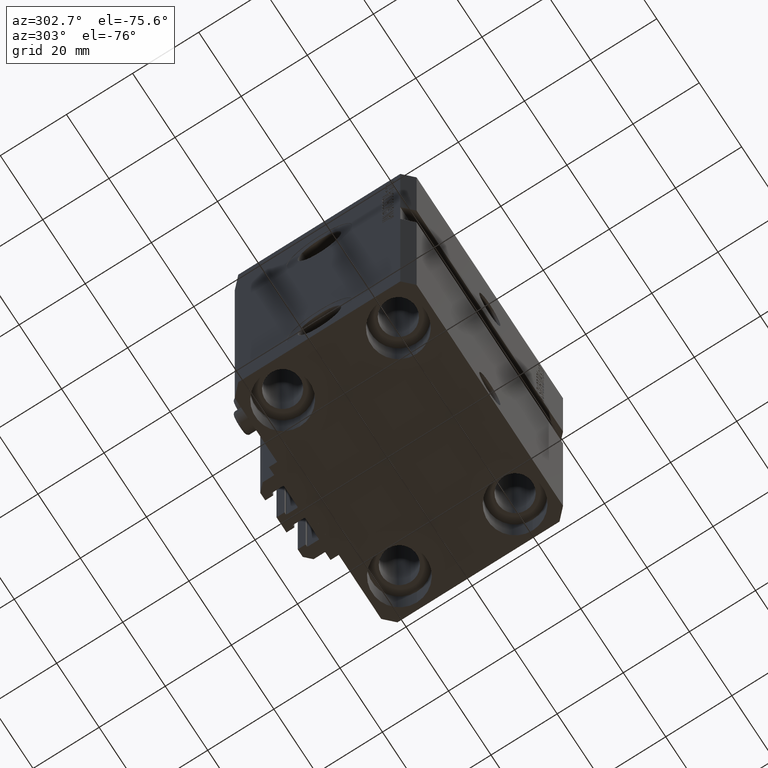
[diagram: clean part render]
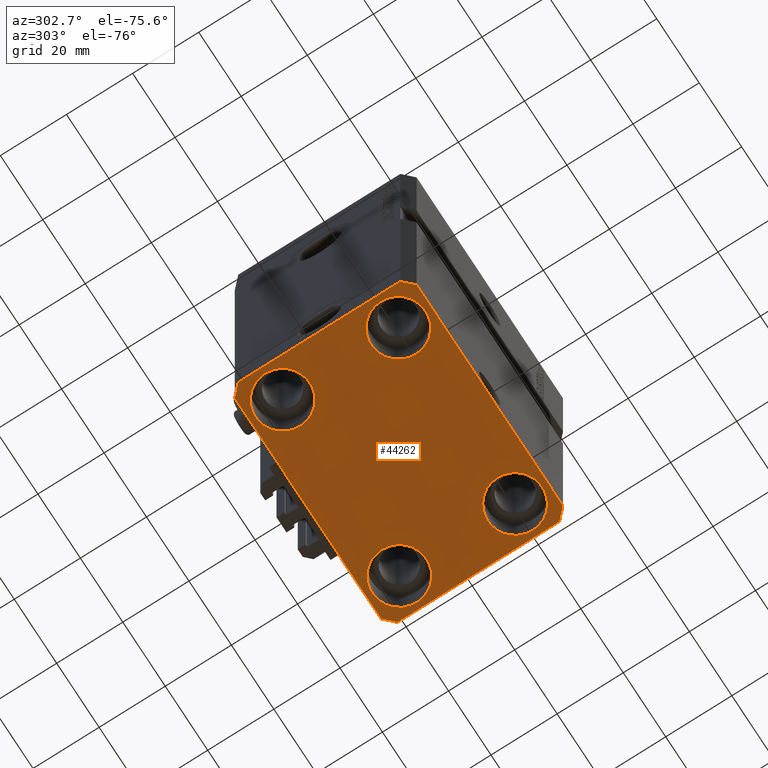
[diagram: same view with one face highlighted and labeled with its STEP entity id]
A machine part, auxiliary view. The second image highlights one B-rep face of the part: STEP entity #44262.
In plain terms, the highlighted planar face has unit normal (0, 0, 1).
Its self-contained STEP definition (entity closure, byte-faithful):
#97 = VERTEX_POINT ( 'NONE', #26257 ) ;
#560 = EDGE_CURVE ( 'NONE', #45654, #14595, #10324, .T. ) ;
#847 = AXIS2_PLACEMENT_3D ( 'NONE', #31319, #25338, #32042 ) ;
#895 = CARTESIAN_POINT ( 'NONE',  ( 19.25000000000000000, 17.50000000000001066, -110.0000000000000000 ) ) ;
#1561 = PLANE ( 'NONE',  #15464 ) ;
#1662 = ORIENTED_EDGE ( 'NONE', *, *, #43629, .F. ) ;
#1934 = DIRECTION ( 'NONE',  ( 1.000000000000000000, 0.000000000000000000, 0.000000000000000000 ) ) ;
#2300 = CARTESIAN_POINT ( 'NONE',  ( -34.49999999999998579, -27.49999999999999645, -110.0000000000000000 ) ) ;
#2833 = CIRCLE ( 'NONE', #33663, 8.249999999999992895 ) ;
#2908 = EDGE_CURVE ( 'NONE', #32606, #7104, #16750, .T. ) ;
#3363 = VECTOR ( 'NONE', #10191, 1000.000000000000114 ) ;
#3722 = EDGE_LOOP ( 'NONE', ( #15270, #9281 ) ) ;
#3876 = CIRCLE ( 'NONE', #31533, 8.250000000000000000 ) ;
#3890 = CARTESIAN_POINT ( 'NONE',  ( 35.74999999999999289, 17.50000000000001066, -110.0000000000000000 ) ) ;
#4223 = DIRECTION ( 'NONE',  ( 0.000000000000000000, -1.000000000000000000, 0.000000000000000000 ) ) ;
#4416 = ORIENTED_EDGE ( 'NONE', *, *, #38544, .T. ) ;
#4461 = EDGE_CURVE ( 'NONE', #37362, #44240, #40879, .T. ) ;
#4703 = CARTESIAN_POINT ( 'NONE',  ( -19.25000000000000355, 17.50000000000000000, -110.0000000000000000 ) ) ;
#4978 = CARTESIAN_POINT ( 'NONE',  ( 37.50000000000051870, 24.49999999999995381, -110.0000000000000000 ) ) ;
#5450 = CIRCLE ( 'NONE', #11806, 8.250000000000000000 ) ;
#5560 = EDGE_LOOP ( 'NONE', ( #44260, #4416 ) ) ;
#5571 = EDGE_CURVE ( 'NONE', #47182, #39895, #15851, .T. ) ;
#5743 = ORIENTED_EDGE ( 'NONE', *, *, #38446, .T. ) ;
#6146 = DIRECTION ( 'NONE',  ( 1.000000000000000000, 0.000000000000000000, 0.000000000000000000 ) ) ;
#6404 = DIRECTION ( 'NONE',  ( 1.076236605503979380E-14, 1.000000000000000000, 0.000000000000000000 ) ) ;
#6805 = AXIS2_PLACEMENT_3D ( 'NONE', #38846, #39092, #16813 ) ;
#7104 = VERTEX_POINT ( 'NONE', #42065 ) ;
#7486 = VERTEX_POINT ( 'NONE', #895 ) ;
#7753 = DIRECTION ( 'NONE',  ( 1.000000000000000000, 0.000000000000000000, 0.000000000000000000 ) ) ;
#8046 = DIRECTION ( 'NONE',  ( -1.000000000000000000, 0.000000000000000000, 0.000000000000000000 ) ) ;
#8465 = DIRECTION ( 'NONE',  ( -0.000000000000000000, -0.000000000000000000, 1.000000000000000000 ) ) ;
#8726 = EDGE_CURVE ( 'NONE', #25590, #29877, #30569, .T. ) ;
#8745 = ORIENTED_EDGE ( 'NONE', *, *, #14236, .F. ) ;
#8804 = ORIENTED_EDGE ( 'NONE', *, *, #4461, .F. ) ;
#9024 = VERTEX_POINT ( 'NONE', #23315 ) ;
#9281 = ORIENTED_EDGE ( 'NONE', *, *, #13380, .T. ) ;
#9432 = LINE ( 'NONE', #4978, #42303 ) ;
#9976 = FACE_OUTER_BOUND ( 'NONE', #10120, .T. ) ;
#10120 = EDGE_LOOP ( 'NONE', ( #29624, #8745, #1662, #8804, #10763, #19708, #47864, #42961 ) ) ;
#10191 = DIRECTION ( 'NONE',  ( 0.7071067811865474617, 0.7071067811865474617, 0.000000000000000000 ) ) ;
#10324 = CIRCLE ( 'NONE', #847, 8.250000000000000000 ) ;
#10430 = AXIS2_PLACEMENT_3D ( 'NONE', #48491, #37613, #15087 ) ;
#10590 = CARTESIAN_POINT ( 'NONE',  ( 27.50000000000000355, -17.50000000000000000, -110.0000000000000000 ) ) ;
#10595 = CARTESIAN_POINT ( 'NONE',  ( 34.49999999999999289, -27.49999999999999645, -110.0000000000000000 ) ) ;
#10763 = ORIENTED_EDGE ( 'NONE', *, *, #20162, .F. ) ;
#11806 = AXIS2_PLACEMENT_3D ( 'NONE', #10590, #37066, #6146 ) ;
#12178 = DIRECTION ( 'NONE',  ( 1.000000000000000000, 0.000000000000000000, 0.000000000000000000 ) ) ;
#12949 = DIRECTION ( 'NONE',  ( 1.000000000000000000, 0.000000000000000000, -0.000000000000000000 ) ) ;
#13380 = EDGE_CURVE ( 'NONE', #36499, #7486, #39100, .T. ) ;
#13385 = CARTESIAN_POINT ( 'NONE',  ( -37.49999999999999289, 24.50000000000000000, -110.0000000000000000 ) ) ;
#14236 = EDGE_CURVE ( 'NONE', #97, #25590, #9432, .T. ) ;
#14595 = VERTEX_POINT ( 'NONE', #23673 ) ;
#15087 = DIRECTION ( 'NONE',  ( 1.000000000000000000, 0.000000000000000000, 0.000000000000000000 ) ) ;
#15270 = ORIENTED_EDGE ( 'NONE', *, *, #48158, .T. ) ;
#15464 = AXIS2_PLACEMENT_3D ( 'NONE', #46853, #43625, #12949 ) ;
#15851 = LINE ( 'NONE', #30951, #27101 ) ;
#16750 = CIRCLE ( 'NONE', #10430, 8.250000000000000000 ) ;
#16813 = DIRECTION ( 'NONE',  ( 1.000000000000000000, 0.000000000000000000, 0.000000000000000000 ) ) ;
#17150 = FACE_BOUND ( 'NONE', #30712, .T. ) ;
#17195 = EDGE_CURVE ( 'NONE', #29877, #47182, #44851, .T. ) ;
#17483 = ORIENTED_EDGE ( 'NONE', *, *, #28271, .T. ) ;
#17644 = DIRECTION ( 'NONE',  ( 1.000000000000000000, 0.000000000000000000, 0.000000000000000000 ) ) ;
#18260 = ORIENTED_EDGE ( 'NONE', *, *, #2908, .T. ) ;
#19309 = LINE ( 'NONE', #33696, #39156 ) ;
#19708 = ORIENTED_EDGE ( 'NONE', *, *, #43483, .F. ) ;
#20070 = DIRECTION ( 'NONE',  ( -0.7071067811865356934, 0.7071067811865594521, 0.000000000000000000 ) ) ;
#20162 = EDGE_CURVE ( 'NONE', #33146, #37362, #36210, .T. ) ;
#20370 = FACE_BOUND ( 'NONE', #5560, .T. ) ;
#21733 = LINE ( 'NONE', #39824, #37616 ) ;
#21816 = CIRCLE ( 'NONE', #6805, 8.250000000000000000 ) ;
#22146 = DIRECTION ( 'NONE',  ( 1.000000000000000000, 0.000000000000000000, 0.000000000000000000 ) ) ;
#22540 = CARTESIAN_POINT ( 'NONE',  ( -34.49999999999999289, 27.50000000000000000, -110.0000000000000000 ) ) ;
#23315 = CARTESIAN_POINT ( 'NONE',  ( -35.75000000000000711, -17.50000000000000000, -110.0000000000000000 ) ) ;
#23673 = CARTESIAN_POINT ( 'NONE',  ( 35.75000000000000711, -17.50000000000000000, -110.0000000000000000 ) ) ;
#25338 = DIRECTION ( 'NONE',  ( -0.000000000000000000, -0.000000000000000000, 1.000000000000000000 ) ) ;
#25381 = CARTESIAN_POINT ( 'NONE',  ( -34.49999999999999289, 27.50000000000000000, -110.0000000000000000 ) ) ;
#25590 = VERTEX_POINT ( 'NONE', #26820 ) ;
#25864 = CARTESIAN_POINT ( 'NONE',  ( -27.50000000000000355, -17.50000000000000000, -110.0000000000000000 ) ) ;
#26018 = CARTESIAN_POINT ( 'NONE',  ( -34.49999999999998579, -27.49999999999999645, -110.0000000000000000 ) ) ;
#26257 = CARTESIAN_POINT ( 'NONE',  ( 37.50000000000051870, 24.49999999999995381, -110.0000000000000000 ) ) ;
#26820 = CARTESIAN_POINT ( 'NONE',  ( 34.50000000000056843, 27.50000000000000000, -110.0000000000000000 ) ) ;
#27101 = VECTOR ( 'NONE', #4223, 1000.000000000000000 ) ;
#28271 = EDGE_CURVE ( 'NONE', #9024, #29353, #29748, .T. ) ;
#28292 = FACE_BOUND ( 'NONE', #3722, .T. ) ;
#28529 = FACE_BOUND ( 'NONE', #40531, .T. ) ;
#29353 = VERTEX_POINT ( 'NONE', #47852 ) ;
#29624 = ORIENTED_EDGE ( 'NONE', *, *, #8726, .F. ) ;
#29748 = CIRCLE ( 'NONE', #44775, 8.250000000000000000 ) ;
#29877 = VERTEX_POINT ( 'NONE', #25381 ) ;
#30289 = VECTOR ( 'NONE', #8046, 1000.000000000000000 ) ;
#30569 = LINE ( 'NONE', #41960, #30289 ) ;
#30712 = EDGE_LOOP ( 'NONE', ( #5743, #18260 ) ) ;
#30951 = CARTESIAN_POINT ( 'NONE',  ( -37.49999999999999289, 24.50000000000000000, -110.0000000000000000 ) ) ;
#31076 = EDGE_CURVE ( 'NONE', #29353, #9024, #21816, .T. ) ;
#31319 = CARTESIAN_POINT ( 'NONE',  ( 27.50000000000000355, -17.50000000000000000, -110.0000000000000000 ) ) ;
#31533 = AXIS2_PLACEMENT_3D ( 'NONE', #39068, #38823, #1934 ) ;
#32042 = DIRECTION ( 'NONE',  ( 1.000000000000000000, 0.000000000000000000, 0.000000000000000000 ) ) ;
#32606 = VERTEX_POINT ( 'NONE', #4703 ) ;
#33146 = VERTEX_POINT ( 'NONE', #26018 ) ;
#33444 = DIRECTION ( 'NONE',  ( 0.7071067811865483499, -0.7071067811865466846, 0.000000000000000000 ) ) ;
#33663 = AXIS2_PLACEMENT_3D ( 'NONE', #37194, #48567, #7753 ) ;
#33696 = CARTESIAN_POINT ( 'NONE',  ( -37.49999999999999289, -24.50000000000000000, -110.0000000000000000 ) ) ;
#33939 = CARTESIAN_POINT ( 'NONE',  ( 34.49999999999999289, -27.49999999999999645, -110.0000000000000000 ) ) ;
#36196 = VECTOR ( 'NONE', #37160, 1000.000000000000000 ) ;
#36210 = LINE ( 'NONE', #2300, #46037 ) ;
#36499 = VERTEX_POINT ( 'NONE', #3890 ) ;
#37066 = DIRECTION ( 'NONE',  ( -0.000000000000000000, -0.000000000000000000, 1.000000000000000000 ) ) ;
#37160 = DIRECTION ( 'NONE',  ( -0.7071067811865471286, -0.7071067811865479058, 0.000000000000000000 ) ) ;
#37194 = CARTESIAN_POINT ( 'NONE',  ( 27.49999999999999645, 17.50000000000001066, -110.0000000000000000 ) ) ;
#37362 = VERTEX_POINT ( 'NONE', #10595 ) ;
#37613 = DIRECTION ( 'NONE',  ( -0.000000000000000000, -0.000000000000000000, 1.000000000000000000 ) ) ;
#37616 = VECTOR ( 'NONE', #6404, 1000.000000000000000 ) ;
#38446 = EDGE_CURVE ( 'NONE', #7104, #32606, #3876, .T. ) ;
#38544 = EDGE_CURVE ( 'NONE', #14595, #45654, #5450, .T. ) ;
#38823 = DIRECTION ( 'NONE',  ( -0.000000000000000000, -0.000000000000000000, 1.000000000000000000 ) ) ;
#38846 = CARTESIAN_POINT ( 'NONE',  ( -27.50000000000000355, -17.50000000000000000, -110.0000000000000000 ) ) ;
#39068 = CARTESIAN_POINT ( 'NONE',  ( -27.50000000000000355, 17.50000000000000000, -110.0000000000000000 ) ) ;
#39092 = DIRECTION ( 'NONE',  ( -0.000000000000000000, -0.000000000000000000, 1.000000000000000000 ) ) ;
#39100 = CIRCLE ( 'NONE', #42270, 8.249999999999992895 ) ;
#39156 = VECTOR ( 'NONE', #33444, 1000.000000000000000 ) ;
#39187 = CARTESIAN_POINT ( 'NONE',  ( 37.49999999999999289, -24.50000000000000000, -110.0000000000000000 ) ) ;
#39824 = CARTESIAN_POINT ( 'NONE',  ( 37.49999999999999289, -24.50000000000000000, -110.0000000000000000 ) ) ;
#39895 = VERTEX_POINT ( 'NONE', #40243 ) ;
#40243 = CARTESIAN_POINT ( 'NONE',  ( -37.49999999999999289, -24.50000000000000000, -110.0000000000000000 ) ) ;
#40531 = EDGE_LOOP ( 'NONE', ( #17483, #46463 ) ) ;
#40879 = LINE ( 'NONE', #33939, #3363 ) ;
#41960 = CARTESIAN_POINT ( 'NONE',  ( 34.50000000000056843, 27.50000000000000000, -110.0000000000000000 ) ) ;
#42065 = CARTESIAN_POINT ( 'NONE',  ( -35.75000000000000711, 17.50000000000000000, -110.0000000000000000 ) ) ;
#42270 = AXIS2_PLACEMENT_3D ( 'NONE', #47034, #8465, #12178 ) ;
#42303 = VECTOR ( 'NONE', #20070, 1000.000000000000114 ) ;
#42961 = ORIENTED_EDGE ( 'NONE', *, *, #17195, .F. ) ;
#43483 = EDGE_CURVE ( 'NONE', #39895, #33146, #19309, .T. ) ;
#43625 = DIRECTION ( 'NONE',  ( 0.000000000000000000, 0.000000000000000000, 1.000000000000000000 ) ) ;
#43629 = EDGE_CURVE ( 'NONE', #44240, #97, #21733, .T. ) ;
#44195 = DIRECTION ( 'NONE',  ( -0.000000000000000000, -0.000000000000000000, 1.000000000000000000 ) ) ;
#44240 = VERTEX_POINT ( 'NONE', #39187 ) ;
#44260 = ORIENTED_EDGE ( 'NONE', *, *, #560, .T. ) ;
#44262 = ADVANCED_FACE ( 'NONE', ( #28529, #20370, #28292, #17150, #9976 ), #1561, .F. ) ;
#44775 = AXIS2_PLACEMENT_3D ( 'NONE', #25864, #44195, #22146 ) ;
#44851 = LINE ( 'NONE', #22540, #36196 ) ;
#45654 = VERTEX_POINT ( 'NONE', #46863 ) ;
#46037 = VECTOR ( 'NONE', #17644, 1000.000000000000000 ) ;
#46463 = ORIENTED_EDGE ( 'NONE', *, *, #31076, .T. ) ;
#46853 = CARTESIAN_POINT ( 'NONE',  ( 0.000000000000000000, 0.000000000000000000, -110.0000000000000000 ) ) ;
#46863 = CARTESIAN_POINT ( 'NONE',  ( 19.25000000000000000, -17.50000000000000000, -110.0000000000000000 ) ) ;
#47034 = CARTESIAN_POINT ( 'NONE',  ( 27.49999999999999645, 17.50000000000001066, -110.0000000000000000 ) ) ;
#47182 = VERTEX_POINT ( 'NONE', #13385 ) ;
#47852 = CARTESIAN_POINT ( 'NONE',  ( -19.25000000000000355, -17.50000000000000000, -110.0000000000000000 ) ) ;
#47864 = ORIENTED_EDGE ( 'NONE', *, *, #5571, .F. ) ;
#48158 = EDGE_CURVE ( 'NONE', #7486, #36499, #2833, .T. ) ;
#48491 = CARTESIAN_POINT ( 'NONE',  ( -27.50000000000000355, 17.50000000000000000, -110.0000000000000000 ) ) ;
#48567 = DIRECTION ( 'NONE',  ( -0.000000000000000000, -0.000000000000000000, 1.000000000000000000 ) ) ;